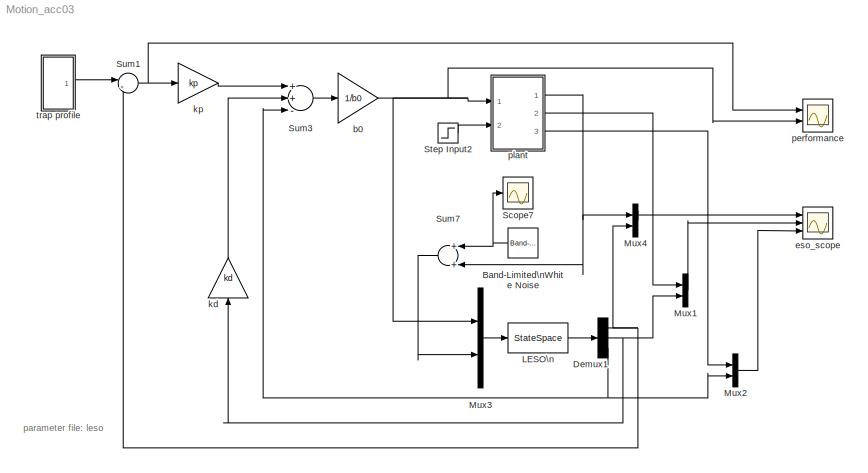
MODEL Motion_acc03
KIND model
CONFIG AbsTol = 1e-8
CONFIG FixedStep = h
CONFIG MaxStep = .1
CONFIG MinStep = auto
CONFIG RelTol = 1e-6
CONFIG Solver = ode1
CONFIG SolverMode = Auto
CONFIG StartTime = 0.0
CONFIG StopTime = 6
BLOCK [Reference] Band-Limited\nWhite Noise  REF=simulink/Sources/Band-Limited\nWhite Noise
  Cov = [1e-9]
  Ports = [0, 1]
  SourceBlock = simulink/Sources/Band-Limited\nWhite Noise
  SourceType = Continuous White Noise.
  Ts = 0.001
  VectorParams1D = on
  seed = [23341]
BLOCK [Demux] Demux1
  Outputs = 3
  Ports = [1, 3]
BLOCK [StateSpace] LESO\n
  A = [-3*wo 1 0;-3*wo^2 0 1; -wo^3 0 0]
  B = [0 3*wo ;b0 3*wo^2 ; 0 wo^3 ]
  C = eye(3)
  D = [0,0;0,0;0,0]
BLOCK [Mux] Mux1
  DisplayOption = bar
  Inputs = 2
  Ports = [2, 1]
BLOCK [Mux] Mux2
  DisplayOption = bar
  Inputs = 2
  Ports = [2, 1]
BLOCK [Mux] Mux3
  DisplayOption = bar
  Inputs = 2
  Ports = [2, 1]
BLOCK [Mux] Mux4
  DisplayOption = bar
  Inputs = 2
  Ports = [2, 1]
BLOCK [Scope] Scope7
  DataFormat = StructureWithTime
  MaxDataPoints = 500000
  NumInputPorts = 1
  Ports = [1]
  TimeRange = 10
  YMax = 1.3
  YMin = 0
BLOCK [Step] Step Input2
  After = -1.16
  Time = 2
BLOCK [Sum] Sum1
  IconShape = round
  Inputs = |+-
  Ports = [2, 1]
BLOCK [Sum] Sum3
  Inputs = ++-
  Ports = [3, 1]
BLOCK [Sum] Sum7
  Ports = [2, 1]
BLOCK [Gain] b0
  Gain = 1/b0
BLOCK [Scope] eso_scope
  DataFormat = StructureWithTime
  MaxDataPoints = 500000
  NumInputPorts = 3
  Ports = [3]
  SaveName = ScopeData3
  TimeRange = 6
  YMax = 2~2~100
  YMin = -2~-2~-100
BLOCK [Gain] kd
  Gain = kd
BLOCK [Gain] kp
  Gain = kp
BLOCK [Scope] performance
  DataFormat = StructureWithTime
  MaxDataPoints = 500000
  NumInputPorts = 2
  Ports = [2]
  SaveName = ScopeData1
  TimeRange = 6
  YMax = 0.04~4
  YMin = -0.02~-2
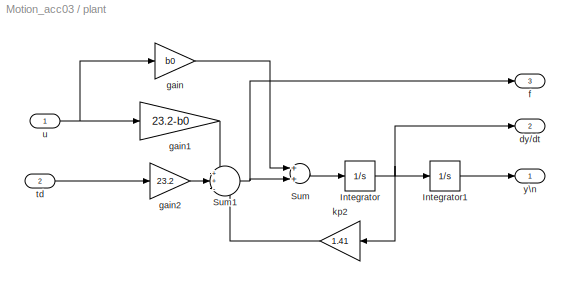
BLOCK [SubSystem] plant
  Ports = [2, 3]
  TreatAsAtomicUnit = off
BLOCK [Integrator] plant/Integrator
  Ports = [1, 1]
BLOCK [Integrator] plant/Integrator1
  Ports = [1, 1]
BLOCK [Sum] plant/Sum
  Ports = [2, 1]
BLOCK [Sum] plant/Sum1
  IconShape = round
  Inputs = ++-
  Ports = [3, 1]
BLOCK [Outport] plant/dy//dt
  Port = 2
BLOCK [Outport] plant/f
  Port = 3
BLOCK [Gain] plant/gain
  Gain = b0
BLOCK [Gain] plant/gain1
  Gain = 23.2-b0
BLOCK [Gain] plant/gain2
  Gain = 23.2
BLOCK [Gain] plant/kp2
  Gain = 1.41
BLOCK [Inport] plant/td
  Port = 2
BLOCK [Inport] plant/u
BLOCK [Outport] plant/y\n
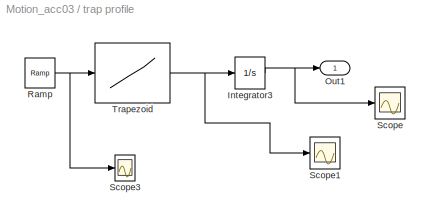
BLOCK [SubSystem] trap profile
  Ports = [0, 1]
  TreatAsAtomicUnit = off
BLOCK [Integrator] trap profile/Integrator3
  LimitOutput = on
  LowerSaturationLimit = 0
  Ports = [1, 1]
  UpperSaturationLimit = 10
BLOCK [Outport] trap profile/Out1
BLOCK [Reference] trap profile/Ramp  REF=simulink/Sources/Ramp
  Ports = [0, 1]
  SourceBlock = simulink/Sources/Ramp
  SourceType = Ramp
  VectorParams1D = on
  X0 = 0
  slope = 1
  start = 0
BLOCK [Scope] trap profile/Scope
  DataFormat = StructureWithTime
  NumInputPorts = 1
  Ports = [1]
BLOCK [Scope] trap profile/Scope1
  DataFormat = StructureWithTime
  MaxDataPoints = 50000
  NumInputPorts = 1
  Ports = [1]
BLOCK [Scope] trap profile/Scope3
  DataFormat = Array
  Decimation = 100
  MaxDataPoints = 5000000
  NumInputPorts = 1
  Ports = [1]
  TimeRange = 1
  YMax = 1.4
  YMin = 0
BLOCK [Lookup] trap profile/Trapezoid
  InputValues = [0 .333333333 .66666666667 1 2]
  OutputValues = [0 1.5 1.5 0 0]
ANNOTATION (root): parameter file: leso
NET Band-Limited\nWhite Noise:1 -> Scope7:1, Sum7:1
NET Demux1:1 -> Mux4:2, Sum1:2
NET Demux1:2 -> Mux1:2, kd:1
NET Demux1:3 -> Mux2:2, Sum3:3
LINE LESO\n:1 -> Demux1:1
LINE Mux1:1 -> eso_scope:2
LINE Mux2:1 -> eso_scope:3
LINE Mux3:1 -> LESO\n:1
LINE Mux4:1 -> eso_scope:1
LINE Step Input2:1 -> plant:2
NET Sum1:1 -> kp:1, performance:1
LINE Sum3:1 -> b0:1
LINE Sum7:1 -> Mux3:2
NET b0:1 -> Mux3:1, performance:2, plant:1
LINE kd:1 -> Sum3:2
LINE kp:1 -> Sum3:1
LINE plant/Integrator1:1 -> plant/y\n:1
NET plant/Integrator:1 -> plant/Integrator1:1, plant/dy//dt:1, plant/kp2:1
NET plant/Sum1:1 -> plant/Sum:2, plant/f:1
LINE plant/Sum:1 -> plant/Integrator:1
LINE plant/gain1:1 -> plant/Sum1:1
LINE plant/gain2:1 -> plant/Sum1:2
LINE plant/gain:1 -> plant/Sum:1
LINE plant/kp2:1 -> plant/Sum1:3
LINE plant/td:1 -> plant/gain2:1
NET plant/u:1 -> plant/gain1:1, plant/gain:1
NET plant:1 -> Mux4:1, Sum7:2
LINE plant:2 -> Mux1:1
LINE plant:3 -> Mux2:1
NET trap profile/Integrator3:1 -> trap profile/Out1:1, trap profile/Scope:1
NET trap profile/Ramp:1 -> trap profile/Scope3:1, trap profile/Trapezoid:1
NET trap profile/Trapezoid:1 -> trap profile/Integrator3:1, trap profile/Scope1:1
LINE trap profile:1 -> Sum1:1
note: NET lines group one-source signal fan-out (src -> all destinations, sorted); 1:1 wires keep LINE
